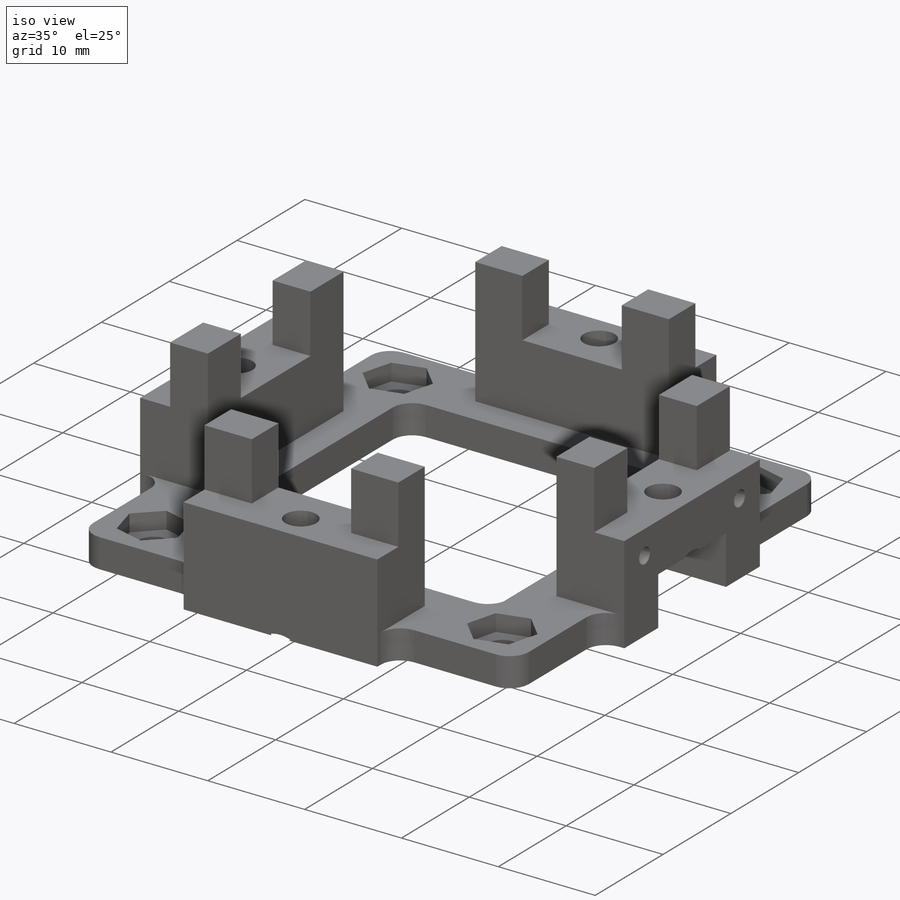
[diagram: iso view]
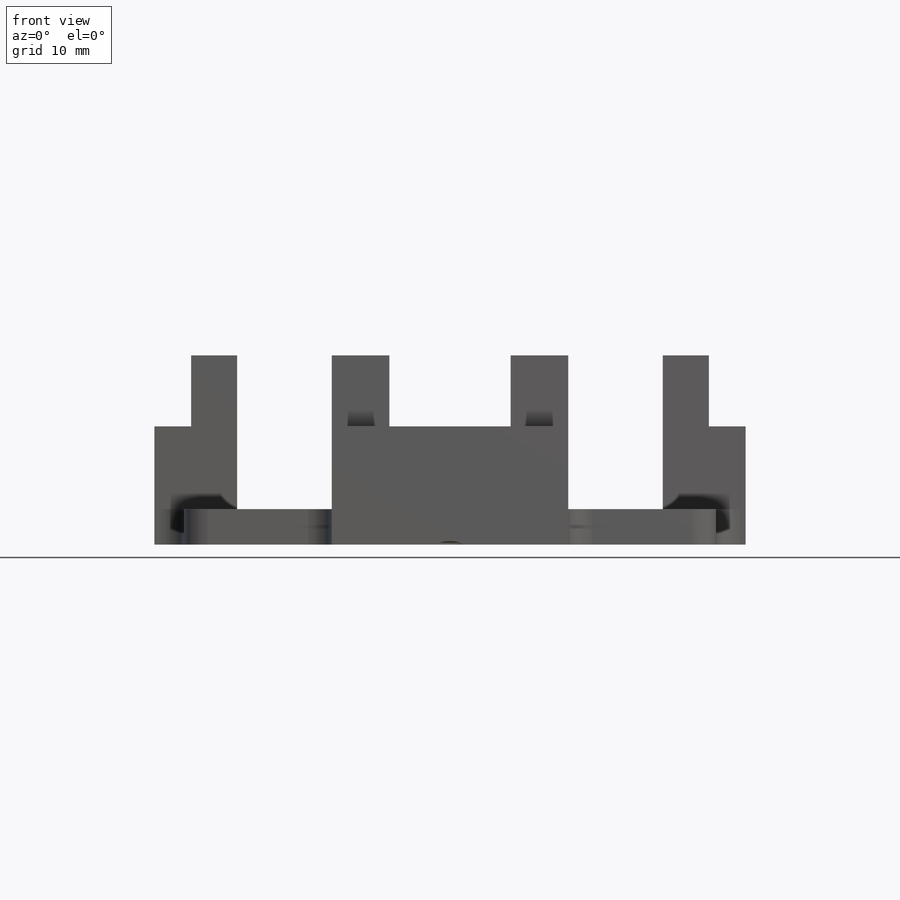
[diagram: front view]
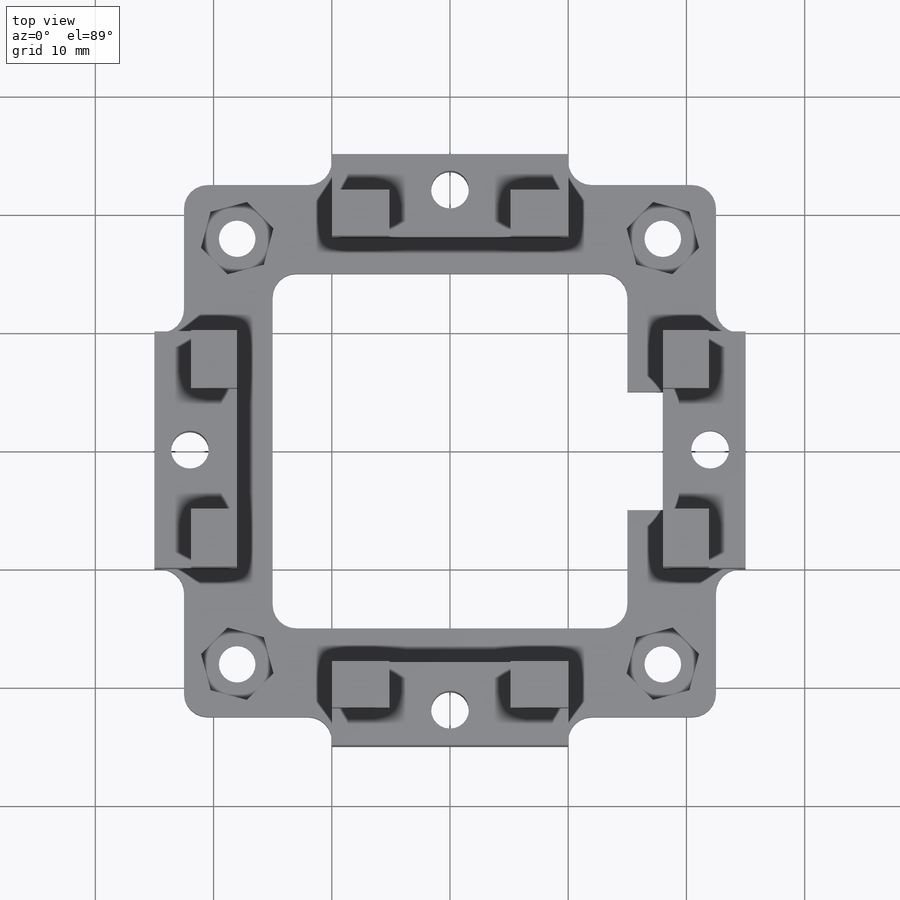
[diagram: top view]
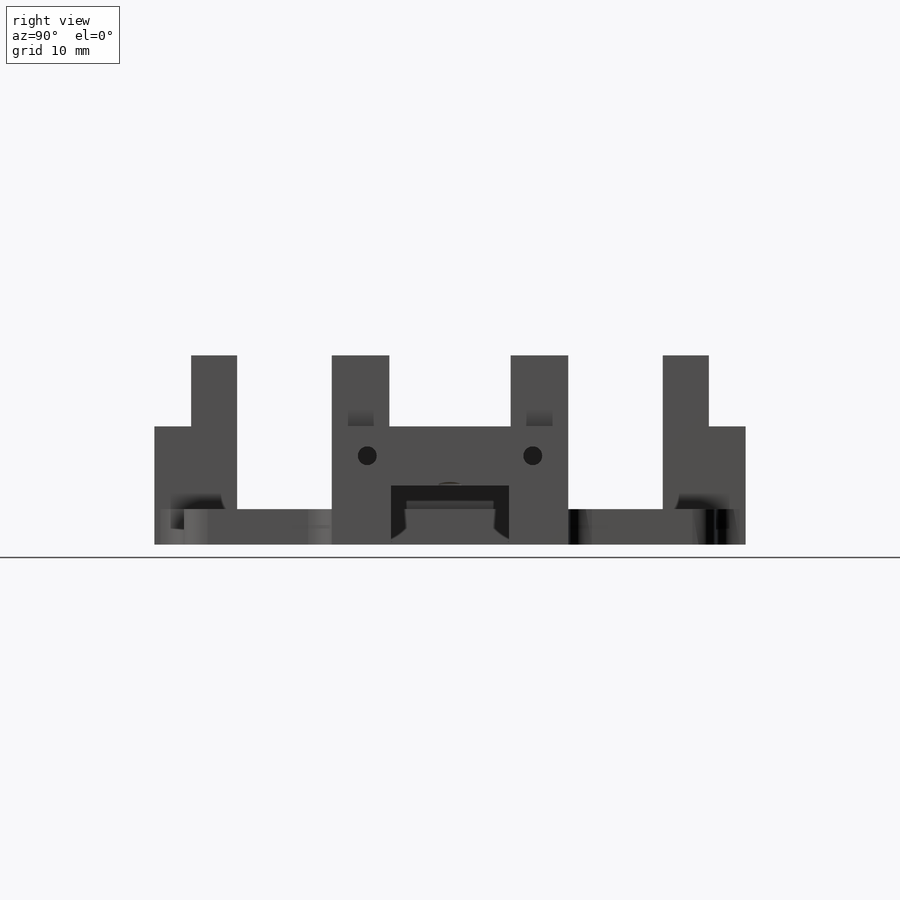
[diagram: right view]
SOLIDWORKS PART (.sldprt)
format: sldprt  version: not decoded by parser v0  size: 551,936 bytes
history: native  units: mm
features: sketch x11, cut_extrude x4, extrude x3, hole x2, material x1, fillet x1 (+13 scaffold rows collapsed)
feature tree (35):
  scaffold x13  (default folders/planes/origin — collapsed)
  material  "Material <not specified>"
  sketch  "Sketch1"  dims[D1=30.0mm D2=45.0mm D3=20.0mm D4=25.0mm]
  extrude  "Boss-Extrude1"  Depth=3mm
  sketch  "Sketch2"  dims[D2=3.0mm D1=4.0]
  extrude  "Boss-Extrude2"  Depth=10mm
  sketch  "Sketch3"  dims[c1.D1=10.25mm c1.D2=4.9mm c1.D3=3.9mm c2.D2=4.0]
  extrude  "Boss-Extrude3"  Depth=6mm
  hole  "CSK for M3 Flat Head Machine Screw1"  Diameter=3.2mm Depth=20mm
  sketch  "Sketch5"  dims[D1=22.0mm]
  sketch  "Sketch4"  dims[hole-wizard template sketch: 31 standard entries collapsed; hole parameters kept: c10.Hole Dia.=3.2mm c10.Hole Depth=20.0mm c10.C'Sink Dia.=6.3mm c10.D4=~17.960512mm c10.C'Sink Angle=90.0deg c10.D5=~14.816244mm c10.Drill Angle=118.0deg c10.Head Clearance=0.15mm]
  sketch  "Sketch6"  dims[D1=5.5mm D2=18.0mm]
  cut_extrude  "Cut-Extrude1"  Depth=1.75mm
  sketch  "Sketch7"  dims[D1=3.1mm]
  cut_extrude  "Cut-Extrude2"  [1 undecoded]
  fillet  "Fillet1"  Radius=2mm
  sketch  "Sketch8"  dims[D1=10.0mm D2=19.25mm]
  cut_extrude  "Cut-Extrude3"  Depth=5mm
  hole  "CSK for M3 Flat Head Machine Screw2"  Diameter=3.2mm Depth=20mm
  sketch  "Sketch10"
  sketch  "Sketch9"  dims[hole-wizard template sketch: 31 standard entries collapsed; hole parameters kept: c10.Hole Dia.=3.2mm c10.Hole Depth=20.0mm c10.C'Sink Dia.=6.3mm c10.D4=~17.960512mm c10.C'Sink Angle=90.0deg c10.D5=~14.816244mm c10.Drill Angle=118.0deg c10.Head Clearance=0.15mm]
  sketch  "Sketch11"  dims[D2=1.6mm D1=7.0mm D3=7.5mm]
  cut_extrude  "Cut-Extrude4"  Depth=7mm
decode coverage: 19 of 21 modeling features carry decoded parameters
note: ~ marks probable driven/reference dimensions
note: 1 parameter value undecoded
note: suppression state not decoded; provenance and decode notes live in map.json
